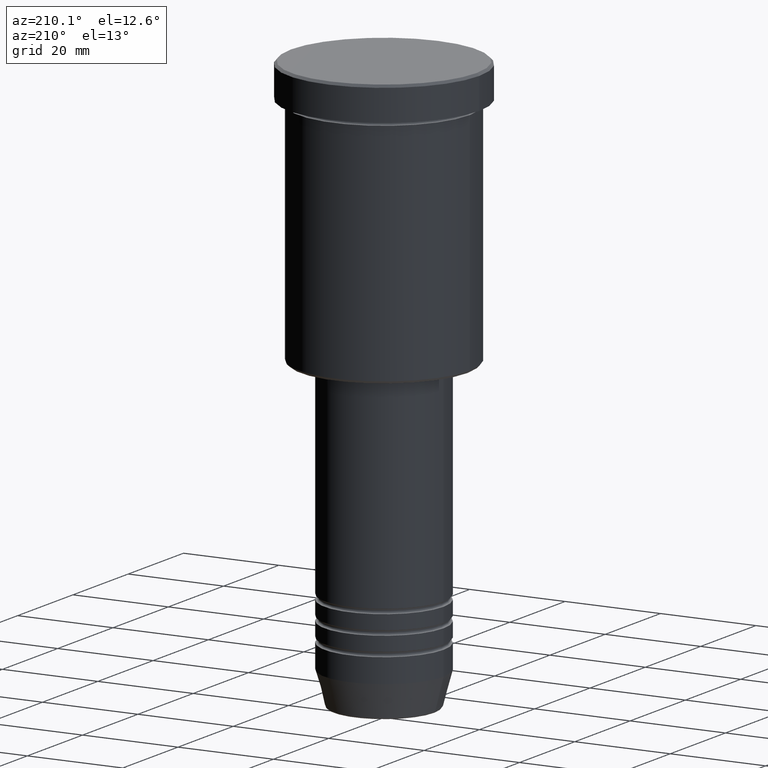
[diagram: clean part render]
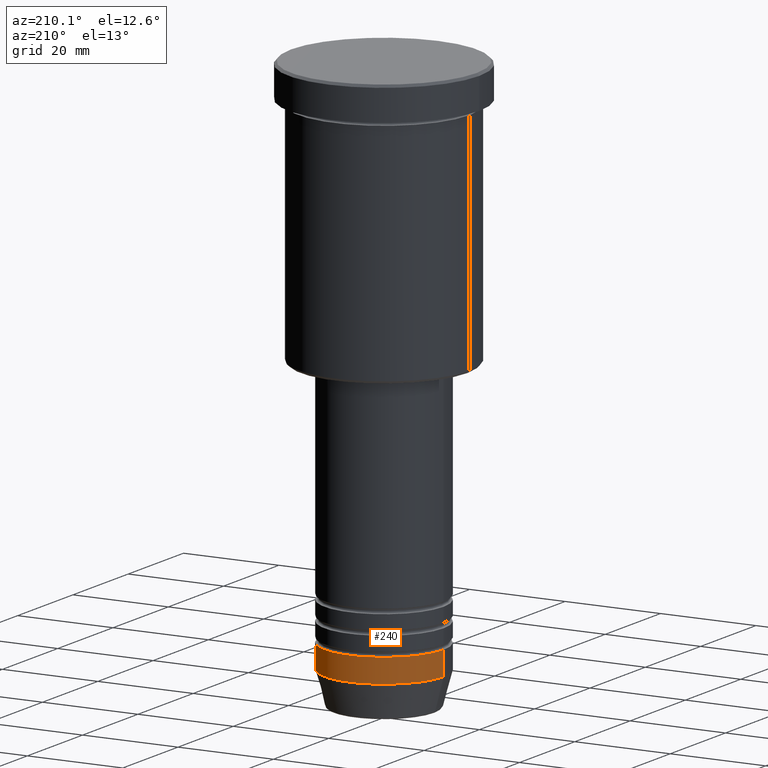
[diagram: same view with one face highlighted and labeled with its STEP entity id]
A machine part, auxiliary view. The second image highlights one B-rep face of the part: STEP entity #240.
In plain terms, the highlighted cylindrical surface (partial cylindrical patch) has radius 12.5 mm, axis along (-0, -0, 1).
Its self-contained STEP definition (entity closure, byte-faithful):
#62 = EDGE_CURVE ( 'NONE', #619, #463, #238, .T. ) ;
#76 = CIRCLE ( 'NONE', #382, 12.50000000000000000 ) ;
#84 = CARTESIAN_POINT ( 'NONE',  ( 0.000000000000000000, 0.000000000000000000, 0.000000000000000000 ) ) ;
#115 = VECTOR ( 'NONE', #1054, 1000.000000000000000 ) ;
#155 = VERTEX_POINT ( 'NONE', #989 ) ;
#173 = ORIENTED_EDGE ( 'NONE', *, *, #837, .T. ) ;
#203 = CARTESIAN_POINT ( 'NONE',  ( 12.50000000000000000, 0.000000000000000000, -112.9999999999999858 ) ) ;
#238 = LINE ( 'NONE', #965, #115 ) ;
#240 = ADVANCED_FACE ( 'NONE', ( #622 ), #699, .T. ) ;
#242 = EDGE_LOOP ( 'NONE', ( #173, #605, #536, #1179 ) ) ;
#294 = DIRECTION ( 'NONE',  ( 1.000000000000000000, 0.000000000000000000, 0.000000000000000000 ) ) ;
#314 = CARTESIAN_POINT ( 'NONE',  ( 0.000000000000000000, 0.000000000000000000, -112.9999999999999858 ) ) ;
#382 = AXIS2_PLACEMENT_3D ( 'NONE', #736, #473, #294 ) ;
#463 = VERTEX_POINT ( 'NONE', #914 ) ;
#473 = DIRECTION ( 'NONE',  ( -0.000000000000000000, -0.000000000000000000, 1.000000000000000000 ) ) ;
#518 = CIRCLE ( 'NONE', #642, 12.50000000000000000 ) ;
#525 = LINE ( 'NONE', #769, #694 ) ;
#536 = ORIENTED_EDGE ( 'NONE', *, *, #1019, .F. ) ;
#605 = ORIENTED_EDGE ( 'NONE', *, *, #737, .T. ) ;
#619 = VERTEX_POINT ( 'NONE', #203 ) ;
#622 = FACE_OUTER_BOUND ( 'NONE', #242, .T. ) ;
#642 = AXIS2_PLACEMENT_3D ( 'NONE', #314, #656, #1131 ) ;
#654 = CARTESIAN_POINT ( 'NONE',  ( -12.50000000000000000, 1.530808498934191521E-15, -107.9999999999999858 ) ) ;
#656 = DIRECTION ( 'NONE',  ( -0.000000000000000000, -0.000000000000000000, 1.000000000000000000 ) ) ;
#679 = VERTEX_POINT ( 'NONE', #654 ) ;
#694 = VECTOR ( 'NONE', #1149, 1000.000000000000000 ) ;
#699 = CYLINDRICAL_SURFACE ( 'NONE', #1092, 12.50000000000000000 ) ;
#736 = CARTESIAN_POINT ( 'NONE',  ( 0.000000000000000000, 0.000000000000000000, -107.9999999999999858 ) ) ;
#737 = EDGE_CURVE ( 'NONE', #155, #679, #525, .T. ) ;
#769 = CARTESIAN_POINT ( 'NONE',  ( -12.50000000000000000, 1.530808498934191521E-15, 0.000000000000000000 ) ) ;
#837 = EDGE_CURVE ( 'NONE', #619, #155, #518, .T. ) ;
#881 = DIRECTION ( 'NONE',  ( -0.000000000000000000, -0.000000000000000000, 1.000000000000000000 ) ) ;
#914 = CARTESIAN_POINT ( 'NONE',  ( 12.50000000000000000, 0.000000000000000000, -107.9999999999999858 ) ) ;
#965 = CARTESIAN_POINT ( 'NONE',  ( 12.50000000000000000, 0.000000000000000000, 0.000000000000000000 ) ) ;
#989 = CARTESIAN_POINT ( 'NONE',  ( -12.50000000000000000, 1.530808498934191521E-15, -112.9999999999999858 ) ) ;
#1000 = DIRECTION ( 'NONE',  ( 1.000000000000000000, 0.000000000000000000, 0.000000000000000000 ) ) ;
#1019 = EDGE_CURVE ( 'NONE', #463, #679, #76, .T. ) ;
#1054 = DIRECTION ( 'NONE',  ( -0.000000000000000000, -0.000000000000000000, 1.000000000000000000 ) ) ;
#1092 = AXIS2_PLACEMENT_3D ( 'NONE', #84, #881, #1000 ) ;
#1131 = DIRECTION ( 'NONE',  ( 1.000000000000000000, 0.000000000000000000, 0.000000000000000000 ) ) ;
#1149 = DIRECTION ( 'NONE',  ( -0.000000000000000000, -0.000000000000000000, 1.000000000000000000 ) ) ;
#1179 = ORIENTED_EDGE ( 'NONE', *, *, #62, .F. ) ;